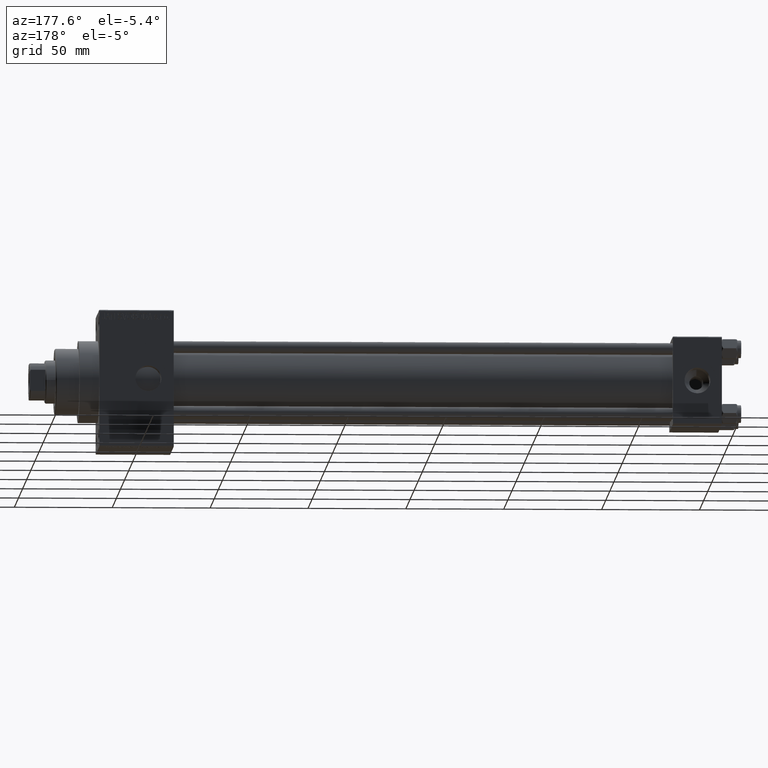
[diagram: clean part render]
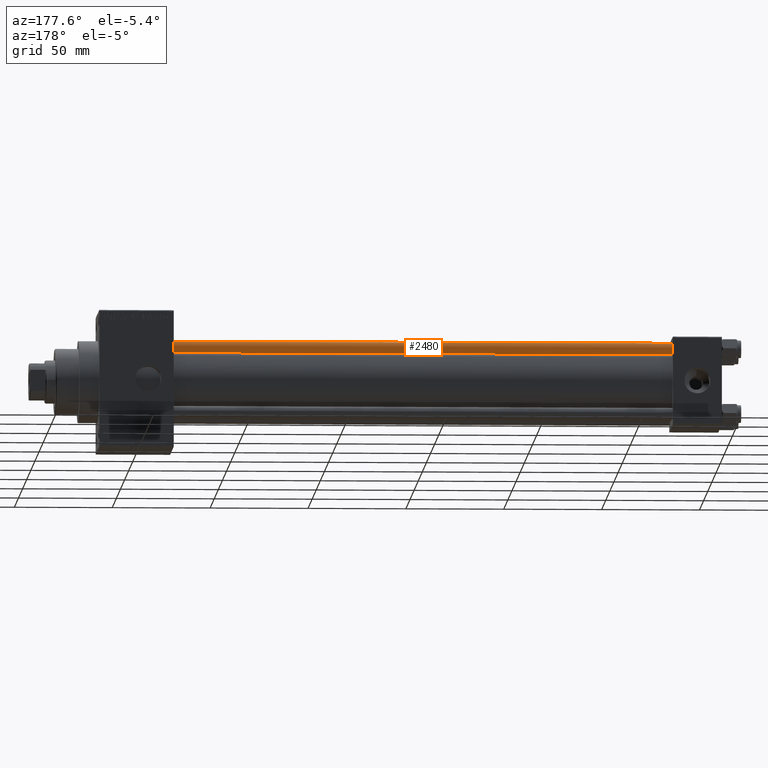
[diagram: same view with one face highlighted and labeled with its STEP entity id]
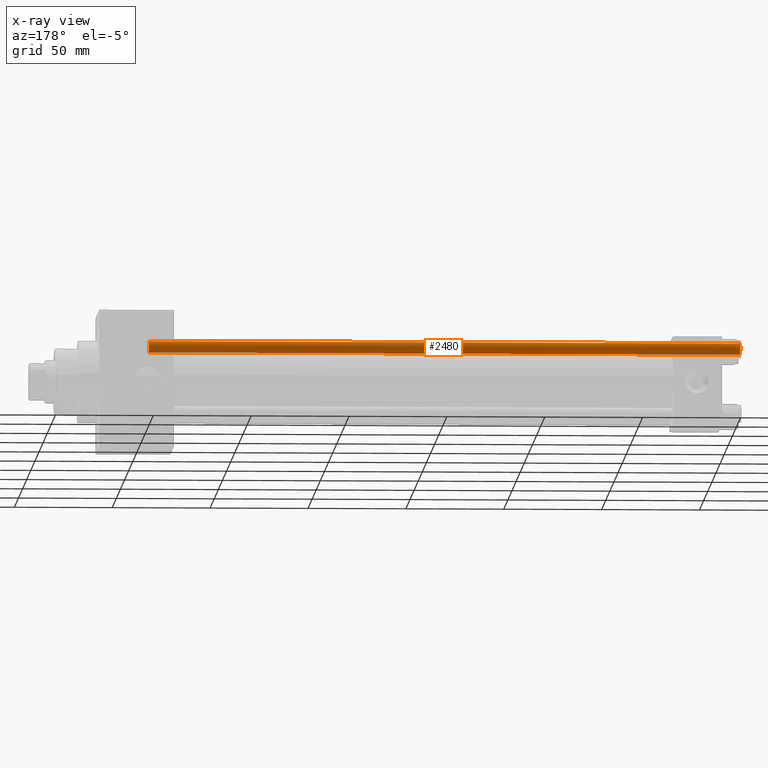
[diagram: x-ray of the same camera — body ghosted, the highlighted face saturated]
A machine part, auxiliary view. The second image highlights one B-rep face of the part: STEP entity #2480.
The next image is the same camera in x-ray: the body ghosted, the highlighted face saturated — about 0% of this face is hidden behind the body in this view.
In plain terms, the highlighted cylindrical surface (edge-blend (fillet) strip) has radius 3 mm, axis along (-1, -0, 0).
Its self-contained STEP definition (entity closure, byte-faithful):
#2480 = ADVANCED_FACE ( 'NONE', ( #44146 ), #9665, .T. ) ;
#3446 = CARTESIAN_POINT ( 'NONE',  ( 0.000000000000000000, 0.000000000000000000, 0.5000000000001114664 ) ) ;
#3620 = LINE ( 'NONE', #22237, #26457 ) ;
#4431 = DIRECTION ( 'NONE',  ( 1.000000000000000000, 0.000000000000000000, 0.000000000000000000 ) ) ;
#4700 = CIRCLE ( 'NONE', #11040, 3.000000000000000444 ) ;
#5565 = CARTESIAN_POINT ( 'NONE',  ( 3.000000000000000444, 3.673940397442060361E-16, 0.5000000000001114664 ) ) ;
#6850 = ORIENTED_EDGE ( 'NONE', *, *, #8540, .T. ) ;
#7976 = DIRECTION ( 'NONE',  ( 0.000000000000000000, 0.000000000000000000, -1.000000000000000000 ) ) ;
#8540 = EDGE_CURVE ( 'NONE', #43797, #38368, #26821, .T. ) ;
#9665 = CYLINDRICAL_SURFACE ( 'NONE', #25019, 3.000000000000000444 ) ;
#10580 = DIRECTION ( 'NONE',  ( -0.000000000000000000, -0.000000000000000000, -1.000000000000000000 ) ) ;
#11040 = AXIS2_PLACEMENT_3D ( 'NONE', #3446, #19086, #4431 ) ;
#11131 = LINE ( 'NONE', #11372, #15889 ) ;
#11372 = CARTESIAN_POINT ( 'NONE',  ( 3.000000000000000444, 3.673940397442060361E-16, 303.0000000000000000 ) ) ;
#14285 = EDGE_CURVE ( 'NONE', #39953, #44017, #4700, .T. ) ;
#15889 = VECTOR ( 'NONE', #44870, 1000.000000000000000 ) ;
#16660 = EDGE_CURVE ( 'NONE', #38368, #39953, #11131, .T. ) ;
#19086 = DIRECTION ( 'NONE',  ( -0.000000000000000000, -0.000000000000000000, 1.000000000000000000 ) ) ;
#22156 = EDGE_CURVE ( 'NONE', #43797, #44017, #3620, .T. ) ;
#22237 = CARTESIAN_POINT ( 'NONE',  ( -3.000000000000000444, 0.000000000000000000, 303.0000000000000000 ) ) ;
#23896 = ORIENTED_EDGE ( 'NONE', *, *, #16660, .T. ) ;
#25019 = AXIS2_PLACEMENT_3D ( 'NONE', #32492, #40433, #28517 ) ;
#26457 = VECTOR ( 'NONE', #10580, 1000.000000000000000 ) ;
#26821 = CIRCLE ( 'NONE', #42664, 3.000000000000000444 ) ;
#27977 = DIRECTION ( 'NONE',  ( 1.000000000000000000, 0.000000000000000000, 0.000000000000000000 ) ) ;
#28517 = DIRECTION ( 'NONE',  ( -1.000000000000000000, 0.000000000000000000, 0.000000000000000000 ) ) ;
#29549 = CARTESIAN_POINT ( 'NONE',  ( 3.000000000000000444, 3.673940397442060361E-16, 302.5000000000000000 ) ) ;
#30133 = ORIENTED_EDGE ( 'NONE', *, *, #22156, .F. ) ;
#32492 = CARTESIAN_POINT ( 'NONE',  ( 0.000000000000000000, 0.000000000000000000, 303.0000000000000000 ) ) ;
#37435 = CARTESIAN_POINT ( 'NONE',  ( -3.000000000000000444, 0.000000000000000000, 0.5000000000001114664 ) ) ;
#38048 = EDGE_LOOP ( 'NONE', ( #6850, #23896, #38739, #30133 ) ) ;
#38368 = VERTEX_POINT ( 'NONE', #29549 ) ;
#38739 = ORIENTED_EDGE ( 'NONE', *, *, #14285, .T. ) ;
#39953 = VERTEX_POINT ( 'NONE', #5565 ) ;
#40433 = DIRECTION ( 'NONE',  ( -0.000000000000000000, -0.000000000000000000, -1.000000000000000000 ) ) ;
#41459 = CARTESIAN_POINT ( 'NONE',  ( -3.000000000000000444, 0.000000000000000000, 302.5000000000000000 ) ) ;
#42664 = AXIS2_PLACEMENT_3D ( 'NONE', #42884, #7976, #27977 ) ;
#42884 = CARTESIAN_POINT ( 'NONE',  ( 0.000000000000000000, 0.000000000000000000, 302.5000000000000000 ) ) ;
#43797 = VERTEX_POINT ( 'NONE', #41459 ) ;
#44017 = VERTEX_POINT ( 'NONE', #37435 ) ;
#44146 = FACE_OUTER_BOUND ( 'NONE', #38048, .T. ) ;
#44870 = DIRECTION ( 'NONE',  ( -0.000000000000000000, -0.000000000000000000, -1.000000000000000000 ) ) ;